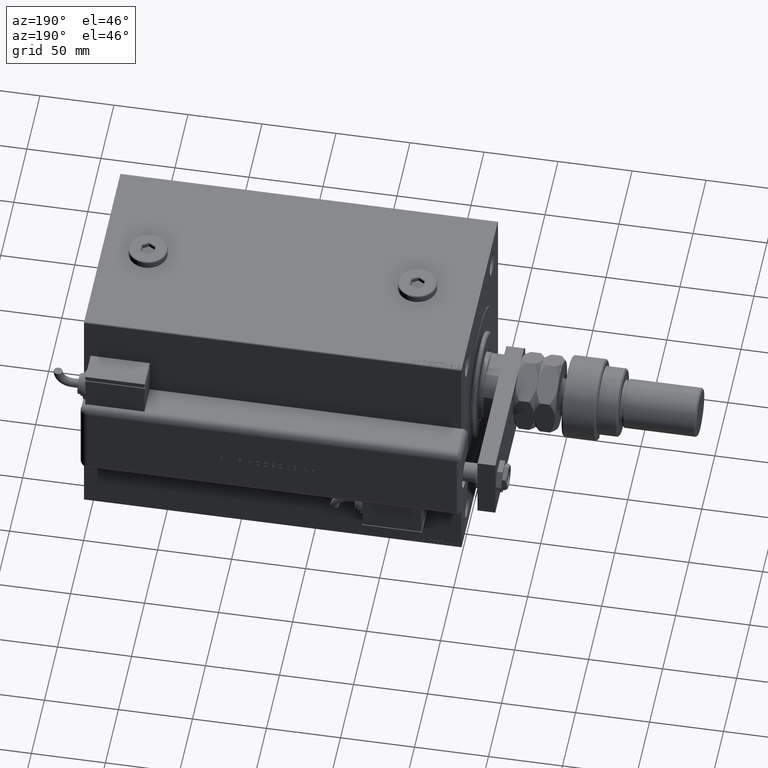
[diagram: clean part render]
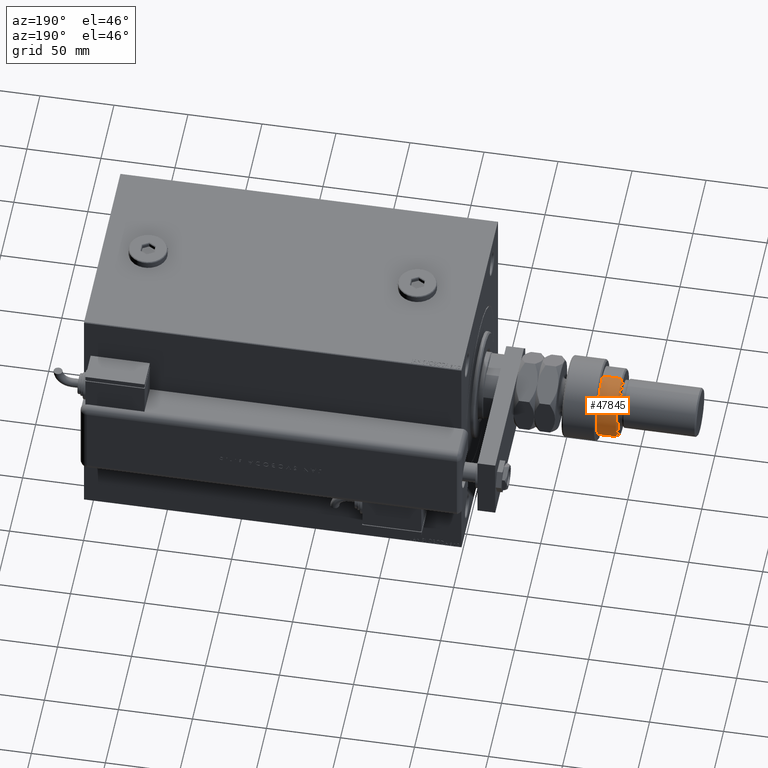
[diagram: same view with one face highlighted and labeled with its STEP entity id]
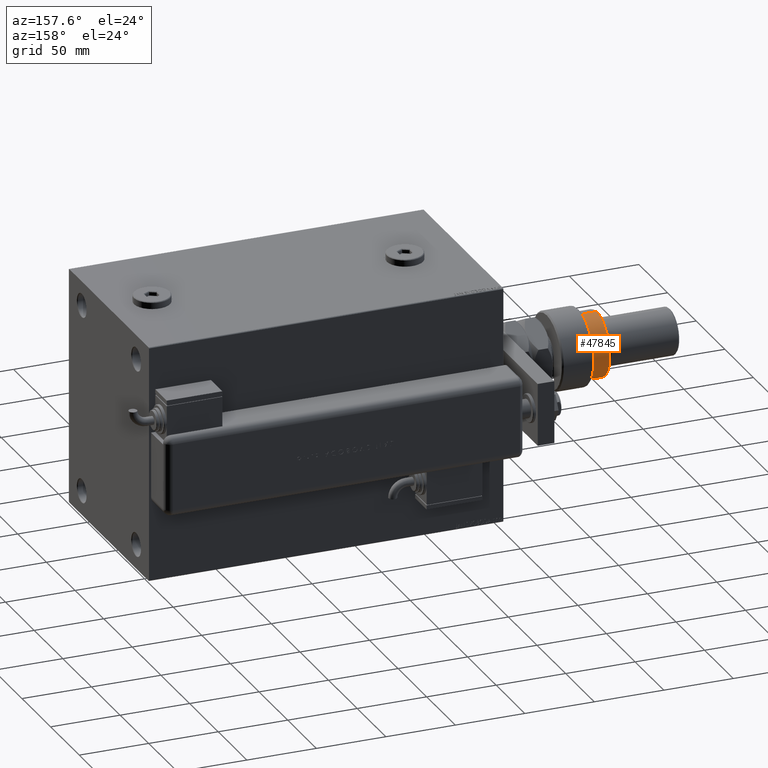
[diagram: same view with one face highlighted and labeled with its STEP entity id]
A machine part, auxiliary view. The second image highlights one B-rep face of the part: STEP entity #47845.
A second angle (auxiliary view) of the same face is appended — the face is thin or edge-on in the first view.
In plain terms, the highlighted cylindrical surface (edge-blend (fillet) strip) has radius 23 mm, axis along (1, -0, -0).
Its self-contained STEP definition (entity closure, byte-faithful):
#2437 = CARTESIAN_POINT ( 'NONE',  ( 0.000000000000000000, 0.000000000000000000, 36.00000000000002842 ) ) ;
#2488 = AXIS2_PLACEMENT_3D ( 'NONE', #28936, #13646, #48791 ) ;
#3312 = CARTESIAN_POINT ( 'NONE',  ( 0.000000000000000000, 0.000000000000000000, 23.00000000000000000 ) ) ;
#4885 = LINE ( 'NONE', #63168, #43730 ) ;
#8705 = CARTESIAN_POINT ( 'NONE',  ( -23.00000000000000000, 0.000000000000000000, 36.00000000000002842 ) ) ;
#10261 = VERTEX_POINT ( 'NONE', #14967 ) ;
#10692 = VERTEX_POINT ( 'NONE', #57156 ) ;
#11218 = VERTEX_POINT ( 'NONE', #64091 ) ;
#12516 = DIRECTION ( 'NONE',  ( 1.000000000000000000, 0.000000000000000000, 0.000000000000000000 ) ) ;
#13620 = VECTOR ( 'NONE', #27093, 1000.000000000000000 ) ;
#13646 = DIRECTION ( 'NONE',  ( -0.000000000000000000, -0.000000000000000000, -1.000000000000000000 ) ) ;
#14594 = CARTESIAN_POINT ( 'NONE',  ( -19.91858428704208350, 11.49999999999999645, 27.50000000000000000 ) ) ;
#14967 = CARTESIAN_POINT ( 'NONE',  ( -19.91858428704208706, 11.50000000000000000, 23.00000000000000000 ) ) ;
#16074 = DIRECTION ( 'NONE',  ( -1.000000000000000000, 0.000000000000000000, 0.000000000000000000 ) ) ;
#16581 = ORIENTED_EDGE ( 'NONE', *, *, #19800, .T. ) ;
#17232 = VERTEX_POINT ( 'NONE', #8705 ) ;
#17652 = EDGE_CURVE ( 'NONE', #36336, #28579, #61930, .T. ) ;
#18309 = CARTESIAN_POINT ( 'NONE',  ( -23.00000000000000000, 0.000000000000000000, 37.00000000000000000 ) ) ;
#19800 = EDGE_CURVE ( 'NONE', #11218, #10261, #27717, .T. ) ;
#21002 = ORIENTED_EDGE ( 'NONE', *, *, #38719, .T. ) ;
#22695 = AXIS2_PLACEMENT_3D ( 'NONE', #2437, #37241, #12516 ) ;
#23476 = DIRECTION ( 'NONE',  ( 0.000000000000000000, 0.000000000000000000, 1.000000000000000000 ) ) ;
#24559 = CARTESIAN_POINT ( 'NONE',  ( 23.00000000000000000, 2.816687638038912352E-15, 37.00000000000000000 ) ) ;
#27093 = DIRECTION ( 'NONE',  ( -0.000000000000000000, -0.000000000000000000, -1.000000000000000000 ) ) ;
#27717 = CIRCLE ( 'NONE', #30817, 23.00000000000000000 ) ;
#28579 = VERTEX_POINT ( 'NONE', #14594 ) ;
#28936 = CARTESIAN_POINT ( 'NONE',  ( 0.000000000000000000, 0.000000000000000000, 37.00000000000000000 ) ) ;
#30193 = ORIENTED_EDGE ( 'NONE', *, *, #17652, .F. ) ;
#30368 = EDGE_LOOP ( 'NONE', ( #36824, #21002, #16581, #46636, #30193, #55667 ) ) ;
#30817 = AXIS2_PLACEMENT_3D ( 'NONE', #3312, #23476, #58308 ) ;
#31030 = DIRECTION ( 'NONE',  ( 0.000000000000000000, 0.000000000000000000, -1.000000000000000000 ) ) ;
#31306 = VECTOR ( 'NONE', #48966, 1000.000000000000000 ) ;
#36336 = VERTEX_POINT ( 'NONE', #40506 ) ;
#36824 = ORIENTED_EDGE ( 'NONE', *, *, #62277, .T. ) ;
#37241 = DIRECTION ( 'NONE',  ( 0.000000000000000000, 0.000000000000000000, -1.000000000000000000 ) ) ;
#38719 = EDGE_CURVE ( 'NONE', #10692, #11218, #49606, .T. ) ;
#39684 = DIRECTION ( 'NONE',  ( 0.000000000000000000, 0.000000000000000000, 1.000000000000000000 ) ) ;
#40506 = CARTESIAN_POINT ( 'NONE',  ( -23.00000000000000000, 0.000000000000000000, 27.50000000000000000 ) ) ;
#40800 = CARTESIAN_POINT ( 'NONE',  ( 0.000000000000000000, 0.000000000000000000, 27.50000000000000000 ) ) ;
#41312 = EDGE_CURVE ( 'NONE', #17232, #36336, #42062, .T. ) ;
#41594 = EDGE_CURVE ( 'NONE', #10261, #28579, #4885, .T. ) ;
#42062 = LINE ( 'NONE', #18309, #13620 ) ;
#43730 = VECTOR ( 'NONE', #39684, 1000.000000000000000 ) ;
#45259 = AXIS2_PLACEMENT_3D ( 'NONE', #40800, #31030, #16074 ) ;
#46636 = ORIENTED_EDGE ( 'NONE', *, *, #41594, .T. ) ;
#47832 = FACE_OUTER_BOUND ( 'NONE', #30368, .T. ) ;
#47845 = ADVANCED_FACE ( 'NONE', ( #47832 ), #48473, .T. ) ;
#48473 = CYLINDRICAL_SURFACE ( 'NONE', #2488, 23.00000000000000000 ) ;
#48791 = DIRECTION ( 'NONE',  ( -1.000000000000000000, 0.000000000000000000, 0.000000000000000000 ) ) ;
#48966 = DIRECTION ( 'NONE',  ( -0.000000000000000000, -0.000000000000000000, -1.000000000000000000 ) ) ;
#49606 = LINE ( 'NONE', #24559, #31306 ) ;
#54942 = CIRCLE ( 'NONE', #22695, 23.00000000000000000 ) ;
#55667 = ORIENTED_EDGE ( 'NONE', *, *, #41312, .F. ) ;
#57156 = CARTESIAN_POINT ( 'NONE',  ( 23.00000000000000000, 2.816687638038912352E-15, 36.00000000000002842 ) ) ;
#58308 = DIRECTION ( 'NONE',  ( 1.000000000000000000, 0.000000000000000000, 0.000000000000000000 ) ) ;
#61930 = CIRCLE ( 'NONE', #45259, 23.00000000000000000 ) ;
#62277 = EDGE_CURVE ( 'NONE', #17232, #10692, #54942, .T. ) ;
#63168 = CARTESIAN_POINT ( 'NONE',  ( -19.91858428704208706, 11.50000000000000000, 37.00000000000000000 ) ) ;
#64091 = CARTESIAN_POINT ( 'NONE',  ( 23.00000000000000000, 2.816687638038912352E-15, 23.00000000000000000 ) ) ;